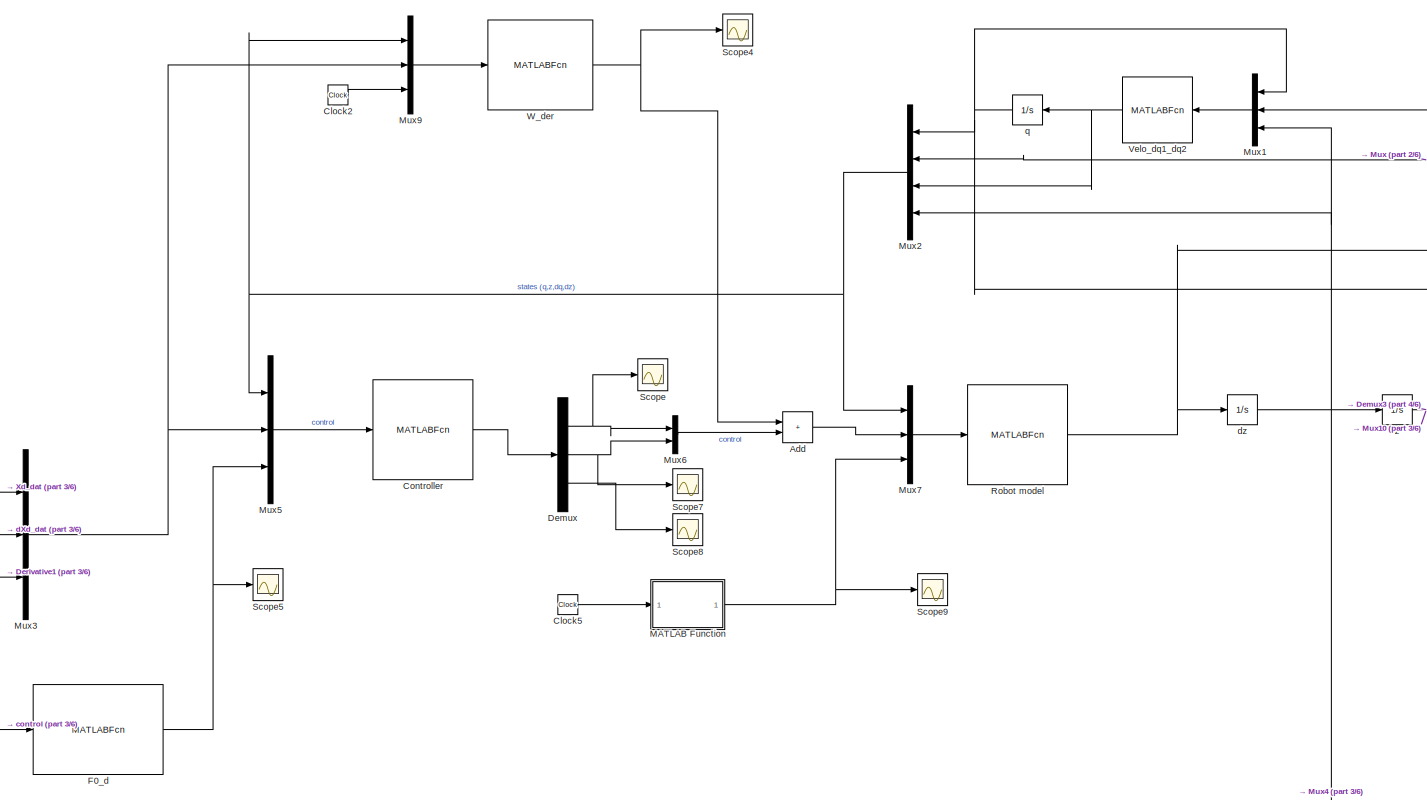
[diagram: root canvas - part 1/6, top center region]
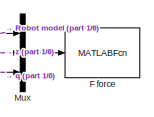
[diagram: root canvas - part 2/6, top right region]
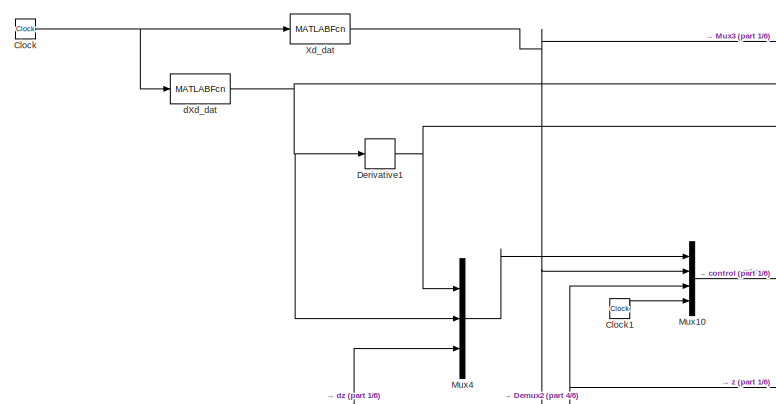
[diagram: root canvas - part 3/6, top left region]
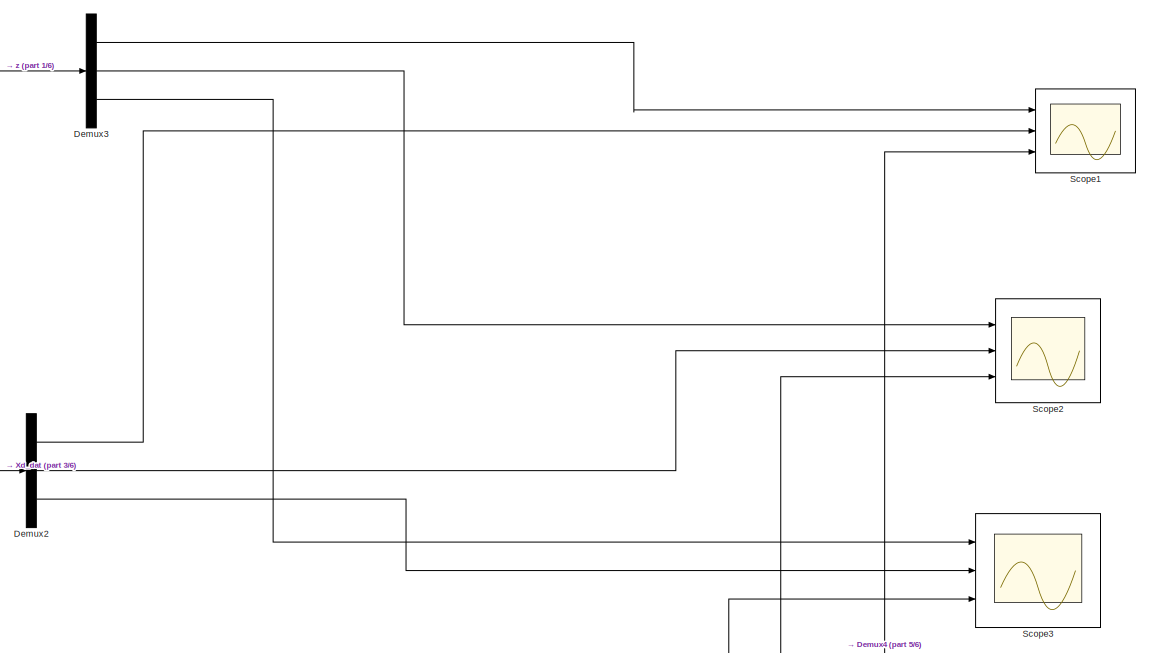
[diagram: root canvas - part 4/6, central region]
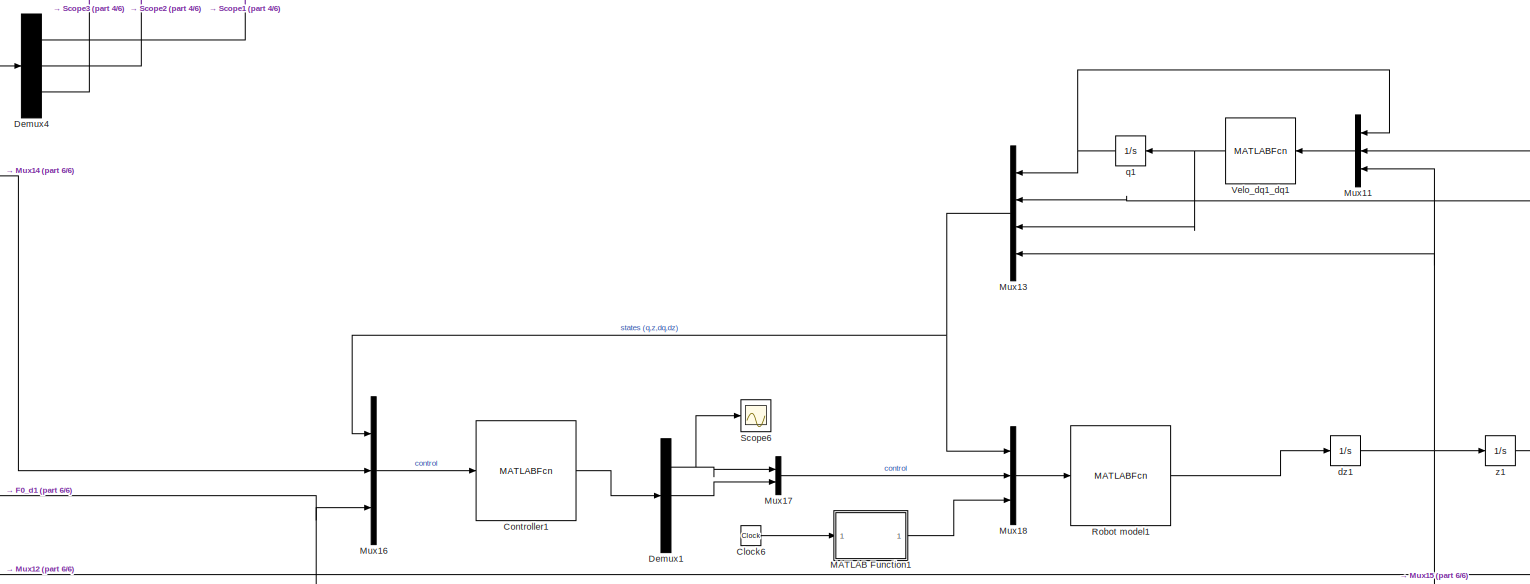
[diagram: root canvas - part 5/6, bottom right region]
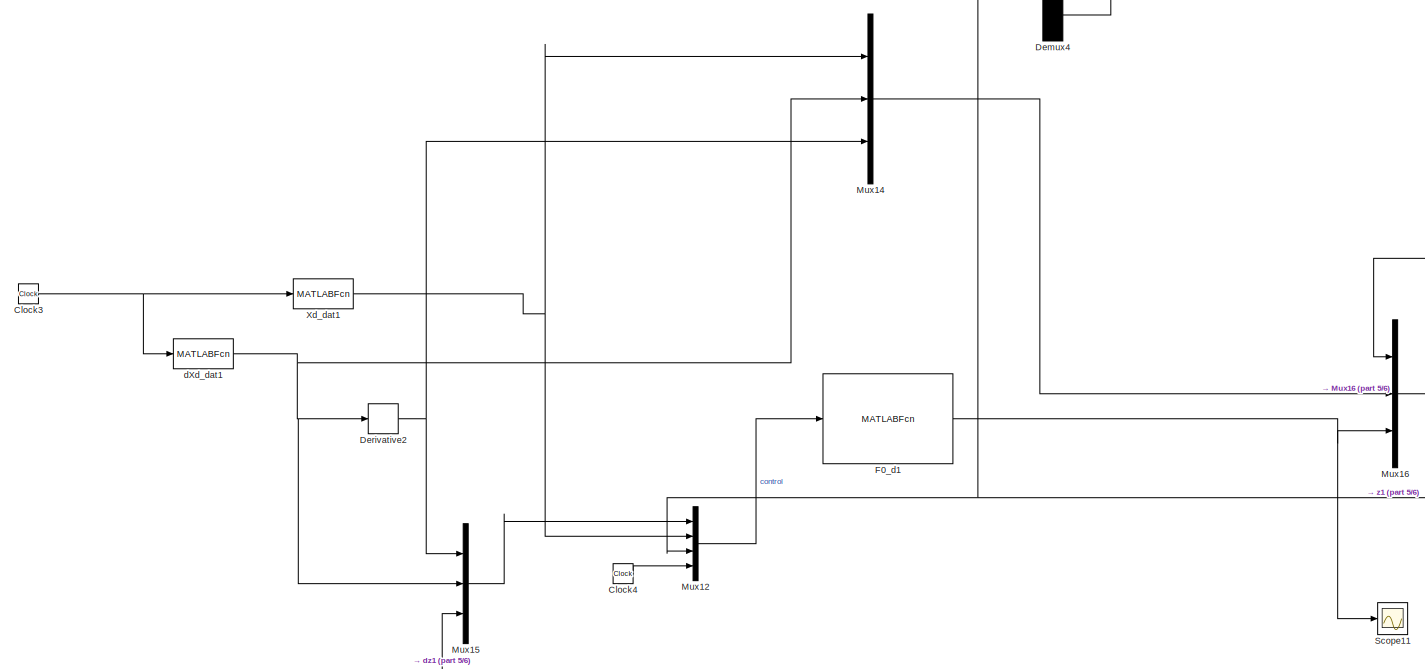
[diagram: root canvas - part 6/6, bottom left region]
MODEL slx_7cfe6c683dff
KIND model
CONFIG AbsTol = auto
CONFIG EnableMultiTasking = off
CONFIG FixedStep = 0.001
CONFIG MaxStep = auto
CONFIG MinStep = auto
CONFIG RelTol = 1e-3
CONFIG SampleTimeConstraint = Unconstrained
CONFIG SolverName = FixedStepAuto
CONFIG StartTime = 0.0
CONFIG StopTime = 3
BLOCK [Sum] Add
  IconShape = rectangular
  Ports = [2, 1]
BLOCK [Clock] Clock
BLOCK [Clock] Clock1
BLOCK [Clock] Clock2
BLOCK [Clock] Clock3
BLOCK [Clock] Clock4
BLOCK [Clock] Clock5
BLOCK [Clock] Clock6
BLOCK [MATLABFcn] Controller
  MATLABFcn = DAR_SMC_controller_noAdap
  OutputDimensions = 12
  Ports = [1, 1]
BLOCK [MATLABFcn] Controller1
  MATLABFcn = DAR_SMC_controller_noAdap
  OutputDimensions = 12
  Ports = [1, 1]
BLOCK [Demux] Demux
  Outputs = [3;3;6]
  Ports = [1, 3]
BLOCK [Demux] Demux1
  Outputs = [3;3;6]
  Ports = [1, 3]
BLOCK [Demux] Demux2
  Outputs = 3
  Ports = [1, 3]
BLOCK [Demux] Demux3
  Outputs = 3
  Ports = [1, 3]
BLOCK [Demux] Demux4
  Outputs = 3
  Ports = [1, 3]
BLOCK [Derivative] Derivative1
BLOCK [Derivative] Derivative2
BLOCK [MATLABFcn] F force
  MATLABFcn = F_force
  OutputDimensions = 7
  Ports = [1, 1]
BLOCK [MATLABFcn] F0_d
  MATLABFcn = F0d_force
  OutputDimensions = 3
  Ports = [1, 1]
BLOCK [MATLABFcn] F0_d1
  MATLABFcn = F0d_force
  OutputDimensions = 3
  Ports = [1, 1]
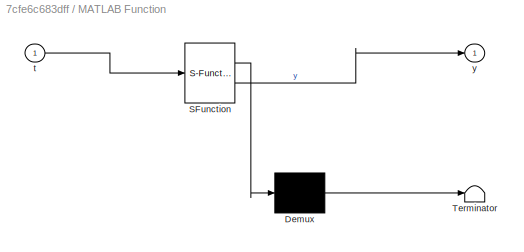
BLOCK [SubSystem] MATLAB Function
  ErrorFcn = Stateflow.Translate.translate
  PermitHierarchicalResolution = ExplicitOnly
  Ports = [1, 1]
  RequestExecContextInheritance = off
  SFBlockType = MATLAB Function
  TreatAsAtomicUnit = on
BLOCK [Demux] MATLAB Function/ Demux 
  Outputs = 1
  Ports = [1, 1]
BLOCK [S-Function] MATLAB Function/ SFunction 
  EnableBusSupport = on
  FunctionName = sf_sfun
  PortCounts = [1 2]
  Ports = [1, 2]
  SFcnIsStateOwnerBlock = off
  SFunctionDeploymentMode = off
  Tag = Stateflow S-Function 2
BLOCK [Terminator] MATLAB Function/ Terminator 
BLOCK [Inport] MATLAB Function/t
BLOCK [Outport] MATLAB Function/y
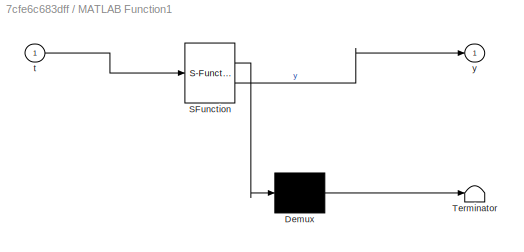
BLOCK [SubSystem] MATLAB Function1
  ErrorFcn = Stateflow.Translate.translate
  PermitHierarchicalResolution = ExplicitOnly
  Ports = [1, 1]
  RequestExecContextInheritance = off
  SFBlockType = MATLAB Function
  TreatAsAtomicUnit = on
BLOCK [Demux] MATLAB Function1/ Demux 
  Outputs = 1
  Ports = [1, 1]
BLOCK [S-Function] MATLAB Function1/ SFunction 
  EnableBusSupport = on
  FunctionName = sf_sfun
  PortCounts = [1 2]
  Ports = [1, 2]
  SFcnIsStateOwnerBlock = off
  SFunctionDeploymentMode = off
  Tag = Stateflow S-Function 1
BLOCK [Terminator] MATLAB Function1/ Terminator 
BLOCK [Inport] MATLAB Function1/t
BLOCK [Outport] MATLAB Function1/y
BLOCK [Mux] Mux
  DisplayOption = bar
  Inputs = 3
  Ports = [3, 1]
BLOCK [Mux] Mux1
  DisplayOption = bar
  Inputs = 3
  Ports = [3, 1]
BLOCK [Mux] Mux10
  DisplayOption = bar
  Ports = [4, 1]
BLOCK [Mux] Mux11
  DisplayOption = bar
  Inputs = 3
  Ports = [3, 1]
BLOCK [Mux] Mux12
  DisplayOption = bar
  Ports = [4, 1]
BLOCK [Mux] Mux13
  DisplayOption = bar
  Ports = [4, 1]
BLOCK [Mux] Mux14
  DisplayOption = bar
  Inputs = 3
  Ports = [3, 1]
BLOCK [Mux] Mux15
  DisplayOption = bar
  Inputs = 3
  Ports = [3, 1]
BLOCK [Mux] Mux16
  DisplayOption = bar
  Inputs = 3
  Ports = [3, 1]
BLOCK [Mux] Mux17
  DisplayOption = bar
  Inputs = 2
  Ports = [2, 1]
BLOCK [Mux] Mux18
  DisplayOption = bar
  Inputs = 3
  Ports = [3, 1]
BLOCK [Mux] Mux2
  DisplayOption = bar
  Ports = [4, 1]
BLOCK [Mux] Mux3
  DisplayOption = bar
  Inputs = 3
  Ports = [3, 1]
BLOCK [Mux] Mux4
  DisplayOption = bar
  Inputs = 3
  Ports = [3, 1]
BLOCK [Mux] Mux5
  DisplayOption = bar
  Inputs = 3
  Ports = [3, 1]
BLOCK [Mux] Mux6
  DisplayOption = bar
  Inputs = 2
  Ports = [2, 1]
BLOCK [Mux] Mux7
  DisplayOption = bar
  Inputs = 3
  Ports = [3, 1]
BLOCK [Mux] Mux9
  DisplayOption = bar
  Inputs = 3
  NameLocation = top
  Ports = [3, 1]
BLOCK [MATLABFcn] Robot model
  MATLABFcn = robot_model_sm
  OutputDimensions = 3
  Ports = [1, 1]
BLOCK [MATLABFcn] Robot model1
  MATLABFcn = robot_model_sm
  OutputDimensions = 3
  Ports = [1, 1]
BLOCK [Scope] Scope
  Floating = off
  NumInputPorts = 1
  Ports = [1]
  ScopeSpecificationString = Simulink.scopes.TimeScopeBlockCfg('CurrentConfiguration', extmgr.ConfigurationSet(extmgr.Configuration('Core','General UI',true),extmgr.Configuration('Core','Source UI',true),extmgr.Configuration('Sources','WiredSimulink',true,'DataLoggingVariableName','ScopeData1'),extmgr.Configuration('Visuals','Time Domain',true,'SerializedDisplays',{struct('MinYLimReal','-12911.9309','MaxYLimReal','17621.86239...<+1562ch>
BLOCK [Scope] Scope1
  Floating = off
  NumInputPorts = 3
  Ports = [3]
  ScopeSpecificationString = Simulink.scopes.TimeScopeBlockCfg('CurrentConfiguration', extmgr.ConfigurationSet(extmgr.Configuration('Core','General UI',true),extmgr.Configuration('Core','Source UI',true),extmgr.Configuration('Sources','WiredSimulink',true,'DataLoggingVariableName','ScopeData1'),extmgr.Configuration('Visuals','Time Domain',true,'SerializedDisplays',{struct('MinYLimReal','0.45954','MaxYLimReal','1.29316','YLabe...<+1506ch>
BLOCK [Scope] Scope11
  Floating = off
  NumInputPorts = 1
  Ports = [1]
  ScopeSpecificationString = Simulink.scopes.TimeScopeBlockCfg('CurrentConfiguration', extmgr.ConfigurationSet(extmgr.Configuration('Core','General UI',true),extmgr.Configuration('Core','Source UI',true),extmgr.Configuration('Sources','WiredSimulink',true,'DataLoggingVariableName','ScopeData3'),extmgr.Configuration('Visuals','Time Domain',true,'SerializedDisplays',{struct('MinYLimReal','-30.04842','MaxYLimReal','17.59845','YL...<+1587ch>
BLOCK [Scope] Scope2
  Floating = off
  NumInputPorts = 3
  Ports = [3]
  ScopeSpecificationString = Simulink.scopes.TimeScopeBlockCfg('CurrentConfiguration', extmgr.ConfigurationSet(extmgr.Configuration('Core','General UI',true),extmgr.Configuration('Core','Source UI',true),extmgr.Configuration('Sources','WiredSimulink',true,'DataLoggingVariableName','ScopeData2'),extmgr.Configuration('Visuals','Time Domain',true,'SerializedDisplays',{struct('MinYLimReal','1.33704','MaxYLimReal','1.96032','YLabe...<+1693ch>
BLOCK [Scope] Scope3
  Floating = off
  NumInputPorts = 3
  Ports = [3]
  ScopeSpecificationString = Simulink.scopes.TimeScopeBlockCfg('CurrentConfiguration', extmgr.ConfigurationSet(extmgr.Configuration('Core','General UI',true),extmgr.Configuration('Core','Source UI',true),extmgr.Configuration('Sources','WiredSimulink',true,'DataLoggingVariableName','ScopeData3'),extmgr.Configuration('Visuals','Time Domain',true,'SerializedDisplays',{struct('MinYLimReal','-0.05345','MaxYLimReal','0.39379','YLab...<+1467ch>
BLOCK [Scope] Scope4
  Floating = off
  NumInputPorts = 1
  Ports = [1]
  ScopeSpecificationString = Simulink.scopes.TimeScopeBlockCfg('CurrentConfiguration', extmgr.ConfigurationSet(extmgr.Configuration('Core','General UI',true),extmgr.Configuration('Core','Source UI',true),extmgr.Configuration('Sources','WiredSimulink',true,'DataLoggingVariableName','ScopeData1'),extmgr.Configuration('Visuals','Time Domain',true,'SerializedDisplays',{struct('MinYLimReal','-8.37911','MaxYLimReal','19.30118','YLa...<+1727ch>
BLOCK [Scope] Scope5
  Floating = off
  NumInputPorts = 1
  Ports = [1]
  ScopeSpecificationString = Simulink.scopes.TimeScopeBlockCfg('CurrentConfiguration', extmgr.ConfigurationSet(extmgr.Configuration('Core','General UI',true),extmgr.Configuration('Core','Source UI',true),extmgr.Configuration('Sources','WiredSimulink',true,'DataLoggingVariableName','ScopeData2'),extmgr.Configuration('Visuals','Time Domain',true,'SerializedDisplays',{struct('MinYLimReal','-0.79703','MaxYLimReal','5.46008','YLab...<+1578ch>
BLOCK [Scope] Scope6
  Floating = off
  NumInputPorts = 1
  Ports = [1]
  ScopeSpecificationString = Simulink.scopes.TimeScopeBlockCfg('CurrentConfiguration', extmgr.ConfigurationSet(extmgr.Configuration('Core','General UI',true),extmgr.Configuration('Core','Source UI',true),extmgr.Configuration('Sources','WiredSimulink',true,'DataLoggingVariableName','ScopeData4'),extmgr.Configuration('Visuals','Time Domain',true,'SerializedDisplays',{struct('MinYLimReal','-343827.91776','MaxYLimReal','178795.96...<+1458ch>
BLOCK [Scope] Scope7
  Floating = off
  NumInputPorts = 1
  Ports = [1]
  ScopeSpecificationString = Simulink.scopes.TimeScopeBlockCfg('CurrentConfiguration', extmgr.ConfigurationSet(extmgr.Configuration('Core','General UI',true),extmgr.Configuration('Core','Source UI',true),extmgr.Configuration('Sources','WiredSimulink',true,'DataLoggingVariableName','ScopeData2'),extmgr.Configuration('Visuals','Time Domain',true,'SerializedDisplays',{struct('MinYLimReal','-142349.53599','MaxYLimReal','15810.081...<+1570ch>
BLOCK [Scope] Scope8
  Floating = off
  NumInputPorts = 1
  Ports = [1]
  ScopeSpecificationString = Simulink.scopes.TimeScopeBlockCfg('CurrentConfiguration', extmgr.ConfigurationSet(extmgr.Configuration('Core','General UI',true),extmgr.Configuration('Core','Source UI',true),extmgr.Configuration('Sources','WiredSimulink',true,'DataLoggingVariableName','ScopeData5'),extmgr.Configuration('Visuals','Time Domain',true,'SerializedDisplays',{struct('MinYLimReal','-20123.92224','MaxYLimReal','31421.5627...<+1600ch>
BLOCK [Scope] Scope9
  Floating = off
  NumInputPorts = 1
  Ports = [1]
  ScopeSpecificationString = Simulink.scopes.TimeScopeBlockCfg('CurrentConfiguration', extmgr.ConfigurationSet(extmgr.Configuration('Core','General UI',true),extmgr.Configuration('Core','Source UI',true),extmgr.Configuration('Sources','WiredSimulink',true,'DataLoggingVariableName','ScopeData6'),extmgr.Configuration('Visuals','Time Domain',true,'SerializedDisplays',{struct('MinYLimReal','-1.00000','MaxYLimReal','1.00000','YLab...<+1540ch>
BLOCK [MATLABFcn] Velo_dq1_dq1
  MATLABFcn = velo_q1_q2
  OutputDimensions = 6
  Ports = [1, 1]
BLOCK [MATLABFcn] Velo_dq1_dq2
  MATLABFcn = velo_q1_q2
  OutputDimensions = 6
  Ports = [1, 1]
BLOCK [MATLABFcn] W_der
  MATLABFcn = W_der
  OutputDimensions = 6
  Ports = [1, 1]
BLOCK [MATLABFcn] Xd_dat
  MATLABFcn = Xd_dat
  OutputDimensions = 3
  Ports = [1, 1]
BLOCK [MATLABFcn] Xd_dat1
  MATLABFcn = Xd_dat
  OutputDimensions = 3
  Ports = [1, 1]
BLOCK [MATLABFcn] dXd_dat
  MATLABFcn = dXd_dat
  OutputDimensions = 3
  Ports = [1, 1]
BLOCK [MATLABFcn] dXd_dat1
  MATLABFcn = dXd_dat
  OutputDimensions = 3
  Ports = [1, 1]
BLOCK [Integrator] dz
  InitialCondition = [0;0;0]
  Ports = [1, 1]
BLOCK [Integrator] dz1
  InitialCondition = [0;0;0]
  Ports = [1, 1]
BLOCK [Integrator] q
  InitialCondition = [3*pi/4;19*pi/12;5*pi/3;pi/4;5*pi/12;pi/3]
  LimitOutput = on
  Ports = [1, 1]
BLOCK [Integrator] q1
  InitialCondition = [3*pi/4;19*pi/12;5*pi/3;pi/4;5*pi/12;pi/3]
  LimitOutput = on
  Ports = [1, 1]
BLOCK [Integrator] z
  InitialCondition = [0.5429;1.3999;0]
  LimitOutput = on
  Ports = [1, 1]
BLOCK [Integrator] z1
  InitialCondition = [0.5429;1.3999;0]
  LimitOutput = on
  Ports = [1, 1]
LINE Add:1 -> Mux7:2
LINE Clock1:1 -> Mux10:4
LINE Clock2:1 -> Mux9:3
NET Clock3:1 -> Xd_dat1:1, dXd_dat1:1
LINE Clock4:1 -> Mux12:4
LINE Clock5:1 -> MATLAB Function:1
LINE Clock6:1 -> MATLAB Function1:1
NET Clock:1 -> Xd_dat:1, dXd_dat:1
LINE Controller1:1 -> Demux1:1
LINE Controller:1 -> Demux:1
NET Demux1:1 -> Mux17:1, Scope6:1
LINE Demux1:2 -> Mux17:2
LINE Demux2:1 -> Scope1:2
LINE Demux2:2 -> Scope2:2
LINE Demux2:3 -> Scope3:2
LINE Demux3:1 -> Scope1:1
LINE Demux3:2 -> Scope2:1
LINE Demux3:3 -> Scope3:1
LINE Demux4:1 -> Scope1:3
LINE Demux4:2 -> Scope2:3
LINE Demux4:3 -> Scope3:3
NET Demux:1 -> Mux6:1, Scope:1
NET Demux:2 -> Mux6:2, Scope7:1
LINE Demux:3 -> Scope8:1
NET Derivative1:1 -> Mux3:3, Mux4:1
NET Derivative2:1 -> Mux14:3, Mux15:1
NET F0_d1:1 -> Mux16:3, Scope11:1
NET F0_d:1 -> Mux5:3, Scope5:1
LINE MATLAB Function1:1 -> Mux18:3
NET MATLAB Function:1 -> Mux7:3, Scope9:1
LINE Mux10:1 -> F0_d:1
LINE Mux11:1 -> Velo_dq1_dq1:1
LINE Mux12:1 -> F0_d1:1
NET Mux13:1 -> Mux16:1, Mux18:1
LINE Mux14:1 -> Mux16:2
LINE Mux15:1 -> Mux12:1
LINE Mux16:1 -> Controller1:1
LINE Mux17:1 -> Mux18:2
LINE Mux18:1 -> Robot model1:1
LINE Mux1:1 -> Velo_dq1_dq2:1
NET Mux2:1 -> Mux5:1, Mux7:1, Mux9:1
NET Mux3:1 -> Mux5:2, Mux9:2
LINE Mux4:1 -> Mux10:1
LINE Mux5:1 -> Controller:1
LINE Mux6:1 -> Add:2
LINE Mux7:1 -> Robot model:1
LINE Mux9:1 -> W_der:1
LINE Mux:1 -> F force:1
LINE Robot model1:1 -> dz1:1
NET Robot model:1 -> Mux:1, dz:1
NET Velo_dq1_dq1:1 -> Mux13:3, q1:1
NET Velo_dq1_dq2:1 -> Mux2:3, q:1
NET W_der:1 -> Add:1, Scope4:1
NET Xd_dat1:1 -> Mux12:2, Mux14:1
NET Xd_dat:1 -> Demux2:1, Mux10:2, Mux3:1
NET dXd_dat1:1 -> Derivative2:1, Mux14:2, Mux15:2
NET dXd_dat:1 -> Derivative1:1, Mux3:2, Mux4:2
NET dz1:1 -> Mux11:3, Mux13:4, Mux15:3, z1:1
NET dz:1 -> Mux1:3, Mux2:4, Mux4:3, z:1
NET q1:1 -> Mux11:1, Mux13:1
NET q:1 -> Mux1:1, Mux2:1, Mux:3
NET z1:1 -> Demux4:1, Mux11:2, Mux12:3, Mux13:2
NET z:1 -> Demux3:1, Mux10:3, Mux1:2, Mux2:2, Mux:2
note: NET lines group one-source signal fan-out (src -> all destinations, sorted); 1:1 wires keep LINE
CHART MATLAB Function states=1 transitions=1
  STATE_LABEL 'eML_blk_kernel()'
  STATE_LABEL 'SCRIPT:\nfunction y = fcn(t)\ny1 = 5*(2*cos(5*t) - sin(8.1*t) - sin(2.5*t)*cos(3.5*t) - sin(10.5*t+3));\n y2 = 5*(cos(8*t)^2 + sin(4.5*t-2)+3*sin(7*t)*cos(2*t)*sin(t)-cos(6.5*t));\n y3 = 0.05*(sin(4*t)-cos(3.2*t)+sin(7*t+5));\n y = [y1 y2 y3];\n% y = [0 0 0];'
CHART MATLAB Function1 states=1 transitions=1
  STATE_LABEL 'eML_blk_kernel()'
  STATE_LABEL 'SCRIPT:\nfunction y = fcn(t)\ny1 = 1*(2*cos(5*t) - sin(8.1*t) - sin(2.5*t)*cos(3.5*t) - sin(10.5*t+3));\n y2 = 1*(cos(8*t)^2 + sin(4.5*t-2)+3*sin(7*t)*cos(2*t)*sin(t)-cos(6.5*t));\n y3 = 0.05*(sin(4*t)-cos(3.2*t)+sin(7*t+5));\n y = [y1 y2 y3];'
CHART  states=0 transitions=0
CHART  states=0 transitions=0
